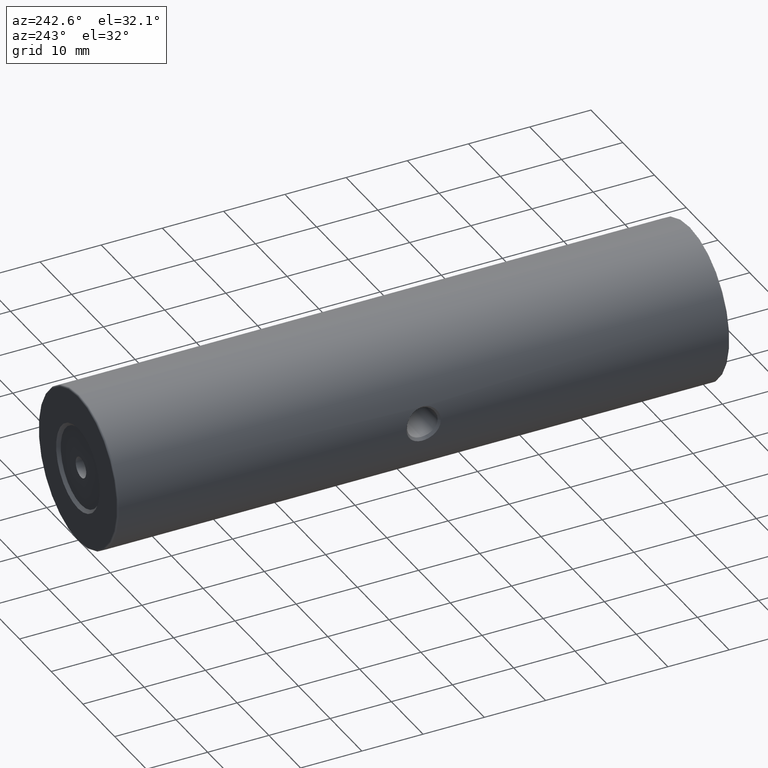
[diagram: clean part render]
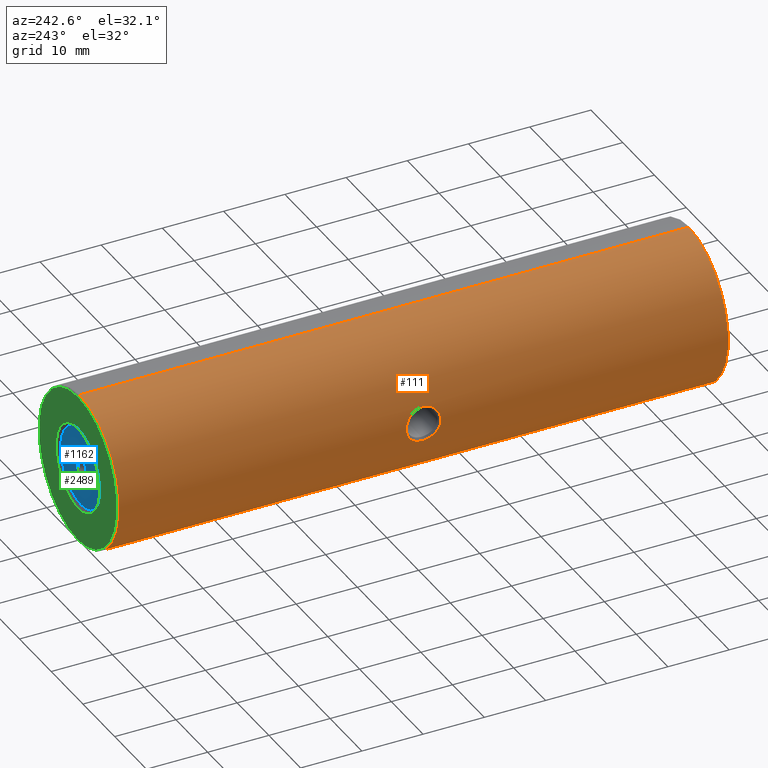
[diagram: same view with three faces highlighted in distinct colors, each labeled with its STEP entity id]
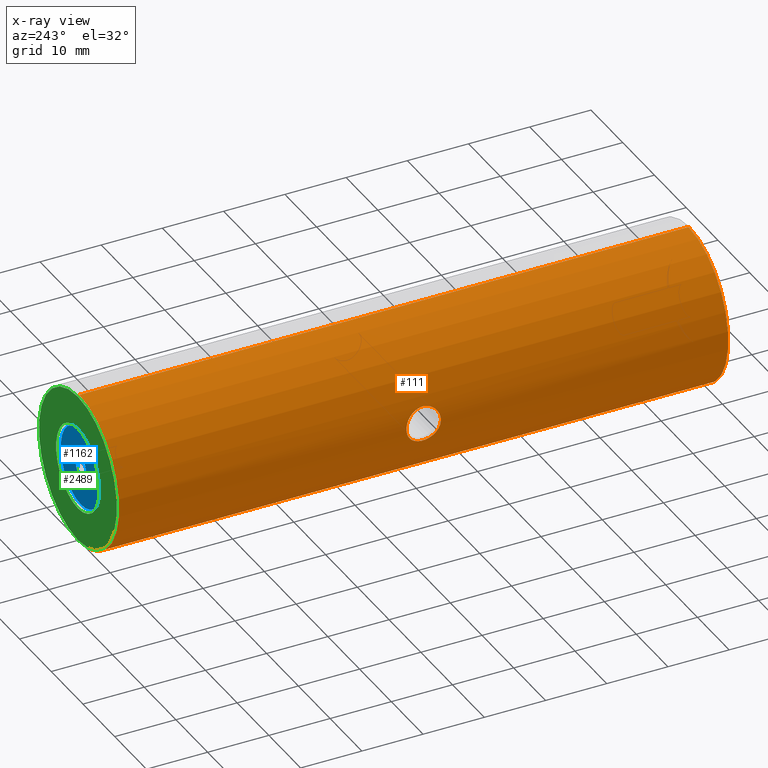
[diagram: x-ray of the same camera — body ghosted, the three highlighted faces saturated]
A machine part, auxiliary view with three faces highlighted in distinct colors.
The next image is the same camera in x-ray (body ghosted, the three faces saturated) — at least one of them is partly hidden behind the body in this view.
Their STEP definitions:

[orange] entity #111 — the highlighted cylindrical surface (partial cylindrical patch) has radius 12.5 mm, axis along (-0, -1, -0).
#65 = FACE_BOUND ( 'NONE', #2144, .T. ) ;
#82 = DIRECTION ( 'NONE',  ( 0.0000000000000000000, 0.0000000000000000000, -1.000000000000000000 ) ) ;
#111 = ADVANCED_FACE ( 'NONE', ( #1123, #65 ), #335, .T. ) ;
#116 = DIRECTION ( 'NONE',  ( -0.0000000000000000000, -1.000000000000000000, -0.0000000000000000000 ) ) ;
#150 = CARTESIAN_POINT ( 'NONE',  ( -22.50520183104453409, -48.35174781523060972, 37.50000000000000711 ) ) ;
#151 = CARTESIAN_POINT ( 'NONE',  ( -35.00524692301917895, 4.209770318075733542, 49.81270652702846036 ) ) ;
#166 = CARTESIAN_POINT ( 'NONE',  ( -34.74801352654726827, 2.806830232074180920, 52.52488523745064697 ) ) ;
#170 = CARTESIAN_POINT ( 'NONE',  ( -34.81219287681434338, 3.255432286616675608, 47.80758469876469974 ) ) ;
#183 = CARTESIAN_POINT ( 'NONE',  ( -34.74827243123371545, -0.01252608434831622118, 52.52367520670846091 ) ) ;
#195 = CARTESIAN_POINT ( 'NONE',  ( -34.93867267745083893, 3.919447845736629521, 51.29073167658783916 ) ) ;
#203 = VECTOR ( 'NONE', #954, 1000.000000000000000 ) ;
#308 = CIRCLE ( 'NONE', #1093, 12.49999999999999645 ) ;
#335 = CYLINDRICAL_SURFACE ( 'NONE', #2774, 12.49999999999999645 ) ;
#360 = EDGE_CURVE ( 'NONE', #1251, #1386, #3247, .T. ) ;
#385 = VERTEX_POINT ( 'NONE', #985 ) ;
#405 = CARTESIAN_POINT ( 'NONE',  ( -22.50520183104453409, -48.35174781523060972, 50.00000000000000000 ) ) ;
#406 = CARTESIAN_POINT ( 'NONE',  ( -34.92365520086108432, 3.852890852512084852, 48.53098690614426403 ) ) ;
#437 = CARTESIAN_POINT ( 'NONE',  ( -35.00520147448047226, 4.209585013875000392, 50.00298564924417377 ) ) ;
#438 = CARTESIAN_POINT ( 'NONE',  ( -34.94725856887438198, 3.958573559308910639, 51.20539725439723355 ) ) ;
#455 = CARTESIAN_POINT ( 'NONE',  ( -34.72889004346956199, 0.1521183056256147914, 47.38523661628914851 ) ) ;
#488 = CARTESIAN_POINT ( 'NONE',  ( -34.72924432496952818, 0.1489096346084399225, 52.61311078801605134 ) ) ;
#549 = ORIENTED_EDGE ( 'NONE', *, *, #3007, .F. ) ;
#565 = ORIENTED_EDGE ( 'NONE', *, *, #360, .T. ) ;
#676 = CARTESIAN_POINT ( 'NONE',  ( -34.68408990658849689, 0.6657967388964748379, 47.18465315096483437 ) ) ;
#706 = CARTESIAN_POINT ( 'NONE',  ( -34.67081540850401922, 1.856390161471467737, 52.87196965017466965 ) ) ;
#709 = CARTESIAN_POINT ( 'NONE',  ( -34.87939741777509539, -0.8359134742765446102, 48.22389352008055852 ) ) ;
#724 = CARTESIAN_POINT ( 'NONE',  ( -34.66192908598771538, 1.582225631729469395, 47.09070756900329968 ) ) ;
#729 = ORIENTED_EDGE ( 'NONE', *, *, #2075, .T. ) ;
#739 = CARTESIAN_POINT ( 'NONE',  ( -35.00520183104453764, -1.413082124769281966, 50.00000000000000000 ) ) ;
#902 = LINE ( 'NONE', #2003, #2278 ) ;
#903 = DIRECTION ( 'NONE',  ( -0.0000000000000000000, -1.000000000000000000, -0.0000000000000000000 ) ) ;
#935 = CIRCLE ( 'NONE', #2717, 12.49999999999999645 ) ;
#954 = DIRECTION ( 'NONE',  ( -0.0000000000000000000, -1.000000000000000000, -0.0000000000000000000 ) ) ;
#969 = DIRECTION ( 'NONE',  ( 0.0000000000000000000, 1.000000000000000000, 0.0000000000000000000 ) ) ;
#982 = CARTESIAN_POINT ( 'NONE',  ( -34.81205133254194095, 3.254567286170650497, 52.19320050888279638 ) ) ;
#985 = CARTESIAN_POINT ( 'NONE',  ( -22.50520183104453409, -48.35174781523060972, 62.50000000000000000 ) ) ;
#1015 = CARTESIAN_POINT ( 'NONE',  ( -34.85728882727386946, -0.7200549649968488453, 51.92206626468256303 ) ) ;
#1093 = AXIS2_PLACEMENT_3D ( 'NONE', #2083, #2050, #1601 ) ;
#1107 = CARTESIAN_POINT ( 'NONE',  ( -34.98691299262920751, -1.339639162907447778, 49.23677669530706424 ) ) ;
#1123 = FACE_OUTER_BOUND ( 'NONE', #1301, .T. ) ;
#1141 = EDGE_CURVE ( 'NONE', #3353, #2219, #308, .T. ) ;
#1212 = CARTESIAN_POINT ( 'NONE',  ( -22.50520183104453409, 51.39825218476939028, 37.50000000000000711 ) ) ;
#1213 = CARTESIAN_POINT ( 'NONE',  ( -35.00520147448047226, 4.209585013875000392, 50.00298564924417377 ) ) ;
#1232 = CARTESIAN_POINT ( 'NONE',  ( -35.00086437889078894, 4.191749029194713039, 49.62049296388074282 ) ) ;
#1243 = CARTESIAN_POINT ( 'NONE',  ( -34.66191919043988889, 1.488437803990507957, 52.90933378057250991 ) ) ;
#1251 = VERTEX_POINT ( 'NONE', #2837 ) ;
#1259 = CARTESIAN_POINT ( 'NONE',  ( -34.96325857829891248, -1.233718698007598036, 51.02694110184884124 ) ) ;
#1262 = CARTESIAN_POINT ( 'NONE',  ( -34.78997005407239840, 3.114338606186000558, 47.68786276462289209 ) ) ;
#1276 = CARTESIAN_POINT ( 'NONE',  ( -35.00511057740308729, 4.209214405473533205, 50.38354389367558639 ) ) ;
#1301 = EDGE_LOOP ( 'NONE', ( #549, #2911, #1562, #1409 ) ) ;
#1386 = VERTEX_POINT ( 'NONE', #437 ) ;
#1409 = ORIENTED_EDGE ( 'NONE', *, *, #3175, .T. ) ;
#1452 = B_SPLINE_CURVE_WITH_KNOTS ( 'NONE', 3,
 ( #2590, #1276, #2034, #438, #195, #1751, #3080, #3128, #2084, #982, #3111, #166, #2556, #2347, #2051, #706, #1768, #2838, #1243, #1505, #1520, #2574, #2299, #488, #183, #1555, #2623, #1015, #2314, #3377, #3361, #1259, #2329, #2854, #2819, #2606, #3143, #739 ),
 .UNSPECIFIED., .F., .F.,
 ( 4, 2, 2, 2, 2, 2, 2, 2, 2, 2, 2, 2, 2, 2, 2, 2, 2, 2, 4 ),
 ( 0.5000000000000000000, 0.5624999999999994449, 0.5781249999999995559, 0.5937499999999995559, 0.6249999999999995559, 0.6562499999999996669, 0.6874999999999996669, 0.7187499999999997780, 0.7343749999999997780, 0.7499999999999997780, 0.7812499999999998890, 0.8125000000000000000, 0.8437500000000000000, 0.8750000000000000000, 0.9062500000000000000, 0.9375000000000001110, 0.9531250000000001110, 0.9687500000000000000, 1.000000000000000000 ),
 .UNSPECIFIED. ) ;
#1457 = CARTESIAN_POINT ( 'NONE',  ( -34.66645419302966502, 1.029721679367136433, 47.10942330578992454 ) ) ;
#1473 = CARTESIAN_POINT ( 'NONE',  ( -34.97116716007710124, 4.065639543346126317, 49.06127516949059242 ) ) ;
#1505 = CARTESIAN_POINT ( 'NONE',  ( -34.66195746431353086, 1.211812476566639818, 52.90917384922279609 ) ) ;
#1520 = CARTESIAN_POINT ( 'NONE',  ( -34.66652474597601952, 1.028189448967919972, 52.89027716194797080 ) ) ;
#1523 = CARTESIAN_POINT ( 'NONE',  ( -34.74847621065863734, 2.810539836508361589, 47.47735429474976598 ) ) ;
#1555 = CARTESIAN_POINT ( 'NONE',  ( -34.79013651512040894, -0.3190703824788193588, 52.31129705536976360 ) ) ;
#1562 = ORIENTED_EDGE ( 'NONE', *, *, #3434, .T. ) ;
#1601 = DIRECTION ( 'NONE',  ( 0.0000000000000000000, 0.0000000000000000000, 1.000000000000000000 ) ) ;
#1660 = CARTESIAN_POINT ( 'NONE',  ( -22.50520183104453409, 51.14825218476939028, 37.50000000000000711 ) ) ;
#1702 = CARTESIAN_POINT ( 'NONE',  ( -35.00520183104453764, -1.413082089048410150, 49.61579498167223790 ) ) ;
#1737 = CARTESIAN_POINT ( 'NONE',  ( -34.66193446152057334, 1.214990703608820777, 47.09073003121876866 ) ) ;
#1751 = CARTESIAN_POINT ( 'NONE',  ( -34.92002400583304933, 3.832124608307145408, 51.45923812921751761 ) ) ;
#1754 = CARTESIAN_POINT ( 'NONE',  ( -34.72905173131965739, 2.645954824929716676, 47.38598351052181812 ) ) ;
#1768 = CARTESIAN_POINT ( 'NONE',  ( -34.66752058121687696, 1.766213776377610900, 52.88584409472479564 ) ) ;
#1770 = CARTESIAN_POINT ( 'NONE',  ( -34.85689439158285552, -0.7179281710239445724, 48.07538743316568741 ) ) ;
#1785 = CARTESIAN_POINT ( 'NONE',  ( -34.79001590680986311, -0.3182597614011816733, 47.68806332061659958 ) ) ;
#2003 = CARTESIAN_POINT ( 'NONE',  ( -22.50520183104453409, 51.39825218476939028, 62.50000000000000000 ) ) ;
#2019 = DIRECTION ( 'NONE',  ( 0.0000000000000000000, 0.0000000000000000000, 1.000000000000000000 ) ) ;
#2034 = CARTESIAN_POINT ( 'NONE',  ( -34.98663707286080893, 4.134943201924357048, 50.76675213524926278 ) ) ;
#2050 = DIRECTION ( 'NONE',  ( -0.0000000000000000000, -1.000000000000000000, -0.0000000000000000000 ) ) ;
#2051 = CARTESIAN_POINT ( 'NONE',  ( -34.68386991631034277, 2.126930833333269266, 52.81629139459893452 ) ) ;
#2075 = EDGE_CURVE ( 'NONE', #1386, #1251, #1452, .T. ) ;
#2083 = CARTESIAN_POINT ( 'NONE',  ( -22.50520183104453409, 51.14825218476939028, 50.00000000000000000 ) ) ;
#2084 = CARTESIAN_POINT ( 'NONE',  ( -34.85705643049905689, 3.515358686858393256, 51.92363226179145386 ) ) ;
#2144 = EDGE_LOOP ( 'NONE', ( #565, #729 ) ) ;
#2179 = CARTESIAN_POINT ( 'NONE',  ( -34.93943696047838898, -1.127055212600431844, 48.70724999343778450 ) ) ;
#2219 = VERTEX_POINT ( 'NONE', #1660 ) ;
#2278 = VECTOR ( 'NONE', #116, 1000.000000000000000 ) ;
#2299 = CARTESIAN_POINT ( 'NONE',  ( -34.69719134326255983, 0.4871785545352537161, 52.75879586372312957 ) ) ;
#2302 = CARTESIAN_POINT ( 'NONE',  ( -34.69691194386515321, 2.305978899527783010, 47.23996501531819803 ) ) ;
#2314 = CARTESIAN_POINT ( 'NONE',  ( -34.87963477420777281, -0.8371459404529536519, 51.77451349623724752 ) ) ;
#2316 = CARTESIAN_POINT ( 'NONE',  ( -34.69688201949648487, 0.4909844491485239049, 47.23984144479319980 ) ) ;
#2329 = CARTESIAN_POINT ( 'NONE',  ( -34.97029888078014181, -1.264562310684188118, 50.93798354391562810 ) ) ;
#2347 = CARTESIAN_POINT ( 'NONE',  ( -34.69672515565150661, 2.303875218949917425, 52.76087174911583588 ) ) ;
#2507 = CARTESIAN_POINT ( 'NONE',  ( -22.50520183104453409, 51.14825218476939028, 62.50000000000000000 ) ) ;
#2508 = CARTESIAN_POINT ( 'NONE',  ( -22.50520183104453409, 51.39825218476939028, 50.00000000000000000 ) ) ;
#2542 = CARTESIAN_POINT ( 'NONE',  ( -34.81216474024145668, -0.4587072315864125227, 47.80748851904357366 ) ) ;
#2556 = CARTESIAN_POINT ( 'NONE',  ( -34.72905683927463372, 2.646135917047924391, 52.61400507407104499 ) ) ;
#2574 = CARTESIAN_POINT ( 'NONE',  ( -34.68406788086937809, 0.6663276252035473801, 52.81543937149063339 ) ) ;
#2590 = CARTESIAN_POINT ( 'NONE',  ( -35.00520147448047226, 4.209585013875000392, 50.00298564924417377 ) ) ;
#2592 = CARTESIAN_POINT ( 'NONE',  ( -34.98371482563760537, 4.119216514428284626, 49.24348063879141080 ) ) ;
#2606 = CARTESIAN_POINT ( 'NONE',  ( -35.00080834476690228, -1.395005945087788302, 50.38049639795658408 ) ) ;
#2623 = CARTESIAN_POINT ( 'NONE',  ( -34.81267991287086261, -0.4618486554978467606, 52.18960616404255859 ) ) ;
#2717 = AXIS2_PLACEMENT_3D ( 'NONE', #405, #969, #2019 ) ;
#2754 = CARTESIAN_POINT ( 'NONE',  ( -35.00520183104453764, -1.413082124769281966, 50.00000000000000000 ) ) ;
#2774 = AXIS2_PLACEMENT_3D ( 'NONE', #2508, #903, #82 ) ;
#2789 = LINE ( 'NONE', #1212, #203 ) ;
#2804 = CARTESIAN_POINT ( 'NONE',  ( -34.74815230532115606, -0.01157353951465371102, 47.47574332327106816 ) ) ;
#2819 = CARTESIAN_POINT ( 'NONE',  ( -34.98808031034209165, -1.341176413144960167, 50.66066995145063601 ) ) ;
#2837 = CARTESIAN_POINT ( 'NONE',  ( -35.00520183104453764, -1.413082124769281966, 50.00000000000000000 ) ) ;
#2838 = CARTESIAN_POINT ( 'NONE',  ( -34.66304078550319190, 1.581811714232515653, 52.90465927043067040 ) ) ;
#2854 = CARTESIAN_POINT ( 'NONE',  ( -34.98275065809119155, -1.318488312192565237, 50.75447521937440598 ) ) ;
#2856 = CARTESIAN_POINT ( 'NONE',  ( -34.66651604185707924, 1.768063399778856182, 47.10968654198261873 ) ) ;
#2911 = ORIENTED_EDGE ( 'NONE', *, *, #1141, .T. ) ;
#3007 = EDGE_CURVE ( 'NONE', #3353, #385, #902, .T. ) ;
#3080 = CARTESIAN_POINT ( 'NONE',  ( -34.91000489703900911, 3.784083020717479595, 51.54180631078423858 ) ) ;
#3111 = CARTESIAN_POINT ( 'NONE',  ( -34.78950233568573225, 3.111229001380134473, 52.31461547249360677 ) ) ;
#3113 = CARTESIAN_POINT ( 'NONE',  ( -34.68404829437714199, 2.129844607670953849, 47.18447624015028197 ) ) ;
#3128 = CARTESIAN_POINT ( 'NONE',  ( -34.87912024513028086, 3.630988286001519239, 51.77802314548174678 ) ) ;
#3143 = CARTESIAN_POINT ( 'NONE',  ( -35.00520183104453764, -1.413082142476727476, 50.19045706908703863 ) ) ;
#3175 = EDGE_CURVE ( 'NONE', #3369, #385, #935, .T. ) ;
#3243 = CARTESIAN_POINT ( 'NONE',  ( -34.92056304550717272, -1.039858968537585859, 48.53915210884532172 ) ) ;
#3247 = B_SPLINE_CURVE_WITH_KNOTS ( 'NONE', 3,
 ( #2754, #1702, #1107, #2179, #3243, #709, #1770, #2542, #1785, #2804, #455, #2316, #676, #1457, #1737, #724, #2856, #3113, #2302, #1754, #1523, #1262, #170, #3364, #406, #1473, #2592, #1232, #151, #1213 ),
 .UNSPECIFIED., .F., .F.,
 ( 4, 2, 2, 2, 2, 2, 2, 2, 2, 2, 2, 2, 2, 2, 4 ),
 ( 0.0000000000000000000, 0.06249999999999993061, 0.09374999999999994449, 0.1249999999999999722, 0.1562500000000000000, 0.1875000000000000000, 0.2187500000000000278, 0.2500000000000000555, 0.2812500000000000555, 0.3125000000000001110, 0.3437500000000001110, 0.3750000000000001110, 0.4375000000000000555, 0.4687500000000000555, 0.5000000000000000000 ),
 .UNSPECIFIED. ) ;
#3353 = VERTEX_POINT ( 'NONE', #2507 ) ;
#3361 = CARTESIAN_POINT ( 'NONE',  ( -34.93964974344273600, -1.128013625740005743, 51.29060020601424696 ) ) ;
#3364 = CARTESIAN_POINT ( 'NONE',  ( -34.87974277257721667, 3.646729404421926724, 48.21237859116426705 ) ) ;
#3369 = VERTEX_POINT ( 'NONE', #150 ) ;
#3377 = CARTESIAN_POINT ( 'NONE',  ( -34.92091958337250190, -1.041568019920831034, 51.45788940173785875 ) ) ;
#3434 = EDGE_CURVE ( 'NONE', #2219, #3369, #2789, .T. ) ;

[blue] entity #1162 — the highlighted planar face has unit normal (0, 1, 0).
#13 = VERTEX_POINT ( 'NONE', #1188 ) ;
#98 = AXIS2_PLACEMENT_3D ( 'NONE', #3110, #467, #3360 ) ;
#272 = PLANE ( 'NONE',  #98 ) ;
#370 = AXIS2_PLACEMENT_3D ( 'NONE', #1498, #1236, #925 ) ;
#430 = EDGE_LOOP ( 'NONE', ( #1826, #1741 ) ) ;
#467 = DIRECTION ( 'NONE',  ( 0.0000000000000000000, 1.000000000000000000, 0.0000000000000000000 ) ) ;
#487 = FACE_BOUND ( 'NONE', #430, .T. ) ;
#622 = EDGE_CURVE ( 'NONE', #13, #3400, #1371, .T. ) ;
#669 = DIRECTION ( 'NONE',  ( 0.0000000000000000000, 1.000000000000000000, 0.0000000000000000000 ) ) ;
#711 = AXIS2_PLACEMENT_3D ( 'NONE', #2069, #3098, #740 ) ;
#722 = CARTESIAN_POINT ( 'NONE',  ( -22.50520183104453409, 50.89825218476939028, 56.35000000000000142 ) ) ;
#740 = DIRECTION ( 'NONE',  ( 0.0000000000000000000, 0.0000000000000000000, 1.000000000000000000 ) ) ;
#815 = ORIENTED_EDGE ( 'NONE', *, *, #2330, .T. ) ;
#821 = AXIS2_PLACEMENT_3D ( 'NONE', #2839, #3066, #2821 ) ;
#891 = ORIENTED_EDGE ( 'NONE', *, *, #3071, .T. ) ;
#925 = DIRECTION ( 'NONE',  ( 0.0000000000000000000, 0.0000000000000000000, 1.000000000000000000 ) ) ;
#1042 = CIRCLE ( 'NONE', #821, 6.350000000000001421 ) ;
#1162 = ADVANCED_FACE ( 'NONE', ( #487, #1816 ), #272, .T. ) ;
#1168 = CARTESIAN_POINT ( 'NONE',  ( -22.50520183104453409, 50.89825218476939028, 50.00000000000000000 ) ) ;
#1188 = CARTESIAN_POINT ( 'NONE',  ( -22.50520183104453409, 50.89825218476939028, 48.35000000000000142 ) ) ;
#1236 = DIRECTION ( 'NONE',  ( 0.0000000000000000000, 1.000000000000000000, 0.0000000000000000000 ) ) ;
#1371 = CIRCLE ( 'NONE', #711, 1.649999999999998579 ) ;
#1498 = CARTESIAN_POINT ( 'NONE',  ( -22.50520183104453409, 50.89825218476939028, 50.00000000000000000 ) ) ;
#1542 = AXIS2_PLACEMENT_3D ( 'NONE', #1168, #669, #2745 ) ;
#1721 = CARTESIAN_POINT ( 'NONE',  ( -22.50520183104453409, 50.89825218476939028, 43.64999999999999858 ) ) ;
#1741 = ORIENTED_EDGE ( 'NONE', *, *, #622, .F. ) ;
#1816 = FACE_OUTER_BOUND ( 'NONE', #2740, .T. ) ;
#1826 = ORIENTED_EDGE ( 'NONE', *, *, #2870, .F. ) ;
#2026 = VERTEX_POINT ( 'NONE', #722 ) ;
#2069 = CARTESIAN_POINT ( 'NONE',  ( -22.50520183104453409, 50.89825218476939028, 50.00000000000000000 ) ) ;
#2164 = CIRCLE ( 'NONE', #370, 1.649999999999998579 ) ;
#2330 = EDGE_CURVE ( 'NONE', #3418, #2026, #2439, .T. ) ;
#2439 = CIRCLE ( 'NONE', #1542, 6.350000000000001421 ) ;
#2740 = EDGE_LOOP ( 'NONE', ( #891, #815 ) ) ;
#2745 = DIRECTION ( 'NONE',  ( 0.0000000000000000000, 0.0000000000000000000, 1.000000000000000000 ) ) ;
#2821 = DIRECTION ( 'NONE',  ( 0.0000000000000000000, 0.0000000000000000000, 1.000000000000000000 ) ) ;
#2839 = CARTESIAN_POINT ( 'NONE',  ( -22.50520183104453409, 50.89825218476939028, 50.00000000000000000 ) ) ;
#2870 = EDGE_CURVE ( 'NONE', #3400, #13, #2164, .T. ) ;
#3066 = DIRECTION ( 'NONE',  ( 0.0000000000000000000, 1.000000000000000000, 0.0000000000000000000 ) ) ;
#3071 = EDGE_CURVE ( 'NONE', #2026, #3418, #1042, .T. ) ;
#3098 = DIRECTION ( 'NONE',  ( 0.0000000000000000000, 1.000000000000000000, 0.0000000000000000000 ) ) ;
#3110 = CARTESIAN_POINT ( 'NONE',  ( -22.50520183104453409, 50.89825218476939028, 50.00000000000000000 ) ) ;
#3329 = CARTESIAN_POINT ( 'NONE',  ( -22.50520183104453409, 50.89825218476939028, 51.64999999999999858 ) ) ;
#3360 = DIRECTION ( 'NONE',  ( 0.0000000000000000000, -0.0000000000000000000, 1.000000000000000000 ) ) ;
#3400 = VERTEX_POINT ( 'NONE', #3329 ) ;
#3418 = VERTEX_POINT ( 'NONE', #1721 ) ;

[green] entity #2489 — the highlighted planar face has unit normal (0, 1, 0).
#20 = DIRECTION ( 'NONE',  ( 0.0000000000000000000, 0.0000000000000000000, 1.000000000000000000 ) ) ;
#175 = ORIENTED_EDGE ( 'NONE', *, *, #3122, .T. ) ;
#327 = PLANE ( 'NONE',  #3055 ) ;
#345 = FACE_OUTER_BOUND ( 'NONE', #2112, .T. ) ;
#366 = AXIS2_PLACEMENT_3D ( 'NONE', #3211, #420, #1488 ) ;
#420 = DIRECTION ( 'NONE',  ( 0.0000000000000000000, 1.000000000000000000, 0.0000000000000000000 ) ) ;
#675 = CARTESIAN_POINT ( 'NONE',  ( -22.50520183104453409, 51.39825218476939028, 56.85000000000002274 ) ) ;
#715 = CARTESIAN_POINT ( 'NONE',  ( -22.50520183104453409, 51.39825218476939028, 43.14999999999997726 ) ) ;
#931 = CIRCLE ( 'NONE', #366, 12.24999999999999645 ) ;
#1023 = VERTEX_POINT ( 'NONE', #2298 ) ;
#1174 = DIRECTION ( 'NONE',  ( 0.0000000000000000000, 0.0000000000000000000, 1.000000000000000000 ) ) ;
#1207 = CIRCLE ( 'NONE', #1764, 6.850000000000022737 ) ;
#1242 = DIRECTION ( 'NONE',  ( 0.0000000000000000000, 0.0000000000000000000, 1.000000000000000000 ) ) ;
#1260 = AXIS2_PLACEMENT_3D ( 'NONE', #1357, #2638, #20 ) ;
#1357 = CARTESIAN_POINT ( 'NONE',  ( -22.50520183104453409, 51.39825218476939028, 50.00000000000000000 ) ) ;
#1456 = CARTESIAN_POINT ( 'NONE',  ( -22.50520183104453409, 51.39825218476939028, 50.00000000000000000 ) ) ;
#1488 = DIRECTION ( 'NONE',  ( 0.0000000000000000000, 0.0000000000000000000, 1.000000000000000000 ) ) ;
#1504 = DIRECTION ( 'NONE',  ( -0.0000000000000000000, -1.000000000000000000, -0.0000000000000000000 ) ) ;
#1506 = EDGE_CURVE ( 'NONE', #1023, #3074, #931, .T. ) ;
#1522 = EDGE_CURVE ( 'NONE', #2876, #3318, #1207, .T. ) ;
#1538 = CIRCLE ( 'NONE', #1260, 12.24999999999999645 ) ;
#1695 = CARTESIAN_POINT ( 'NONE',  ( -22.50520183104453409, 51.39825218476939028, 50.00000000000000000 ) ) ;
#1764 = AXIS2_PLACEMENT_3D ( 'NONE', #2313, #1504, #1242 ) ;
#1830 = EDGE_CURVE ( 'NONE', #3074, #1023, #1538, .T. ) ;
#1844 = ORIENTED_EDGE ( 'NONE', *, *, #1522, .T. ) ;
#1878 = ORIENTED_EDGE ( 'NONE', *, *, #1830, .T. ) ;
#1961 = DIRECTION ( 'NONE',  ( 0.0000000000000000000, -0.0000000000000000000, 1.000000000000000000 ) ) ;
#2074 = ORIENTED_EDGE ( 'NONE', *, *, #1506, .T. ) ;
#2112 = EDGE_LOOP ( 'NONE', ( #2074, #1878 ) ) ;
#2298 = CARTESIAN_POINT ( 'NONE',  ( -22.50520183104453409, 51.39825218476939028, 62.25000000000000000 ) ) ;
#2313 = CARTESIAN_POINT ( 'NONE',  ( -22.50520183104453409, 51.39825218476939028, 50.00000000000000000 ) ) ;
#2489 = ADVANCED_FACE ( 'NONE', ( #345, #2994 ), #327, .T. ) ;
#2496 = EDGE_LOOP ( 'NONE', ( #175, #1844 ) ) ;
#2558 = CARTESIAN_POINT ( 'NONE',  ( -22.50520183104453409, 51.39825218476939028, 37.75000000000000711 ) ) ;
#2638 = DIRECTION ( 'NONE',  ( 0.0000000000000000000, 1.000000000000000000, 0.0000000000000000000 ) ) ;
#2803 = DIRECTION ( 'NONE',  ( -0.0000000000000000000, -1.000000000000000000, -0.0000000000000000000 ) ) ;
#2876 = VERTEX_POINT ( 'NONE', #715 ) ;
#2877 = CIRCLE ( 'NONE', #2993, 6.850000000000022737 ) ;
#2993 = AXIS2_PLACEMENT_3D ( 'NONE', #1456, #2803, #1174 ) ;
#2994 = FACE_BOUND ( 'NONE', #2496, .T. ) ;
#3028 = DIRECTION ( 'NONE',  ( 0.0000000000000000000, 1.000000000000000000, 0.0000000000000000000 ) ) ;
#3055 = AXIS2_PLACEMENT_3D ( 'NONE', #1695, #3028, #1961 ) ;
#3074 = VERTEX_POINT ( 'NONE', #2558 ) ;
#3122 = EDGE_CURVE ( 'NONE', #3318, #2876, #2877, .T. ) ;
#3211 = CARTESIAN_POINT ( 'NONE',  ( -22.50520183104453409, 51.39825218476939028, 50.00000000000000000 ) ) ;
#3318 = VERTEX_POINT ( 'NONE', #675 ) ;